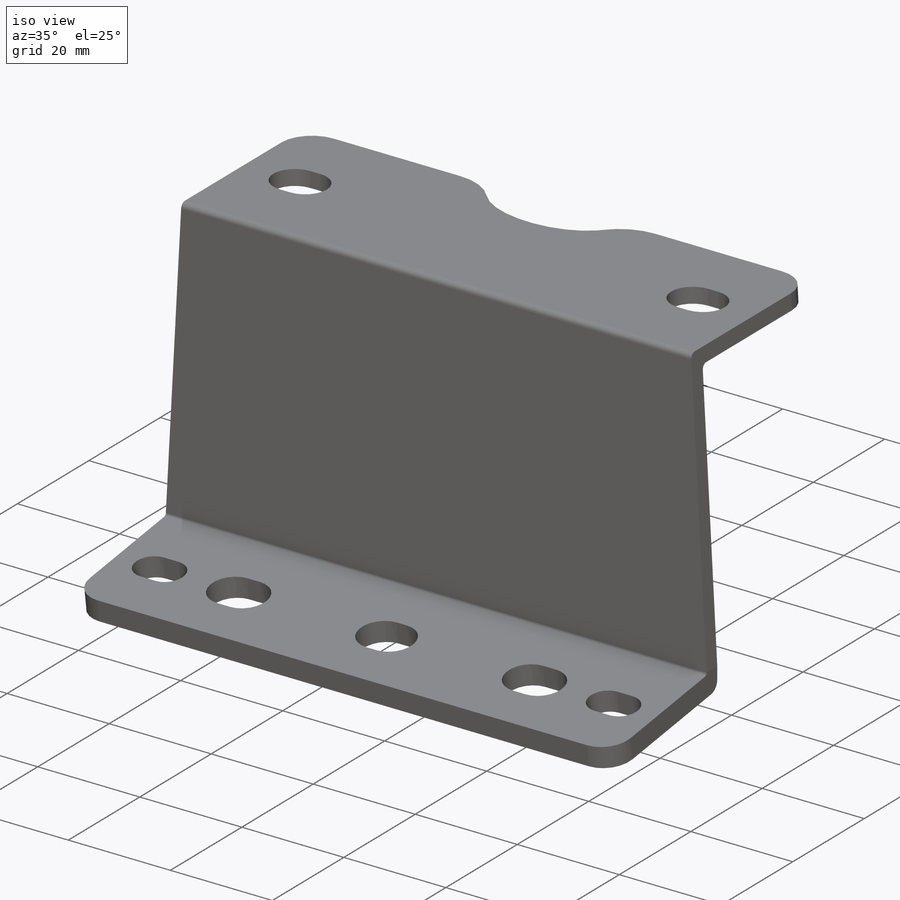
[diagram: iso view]
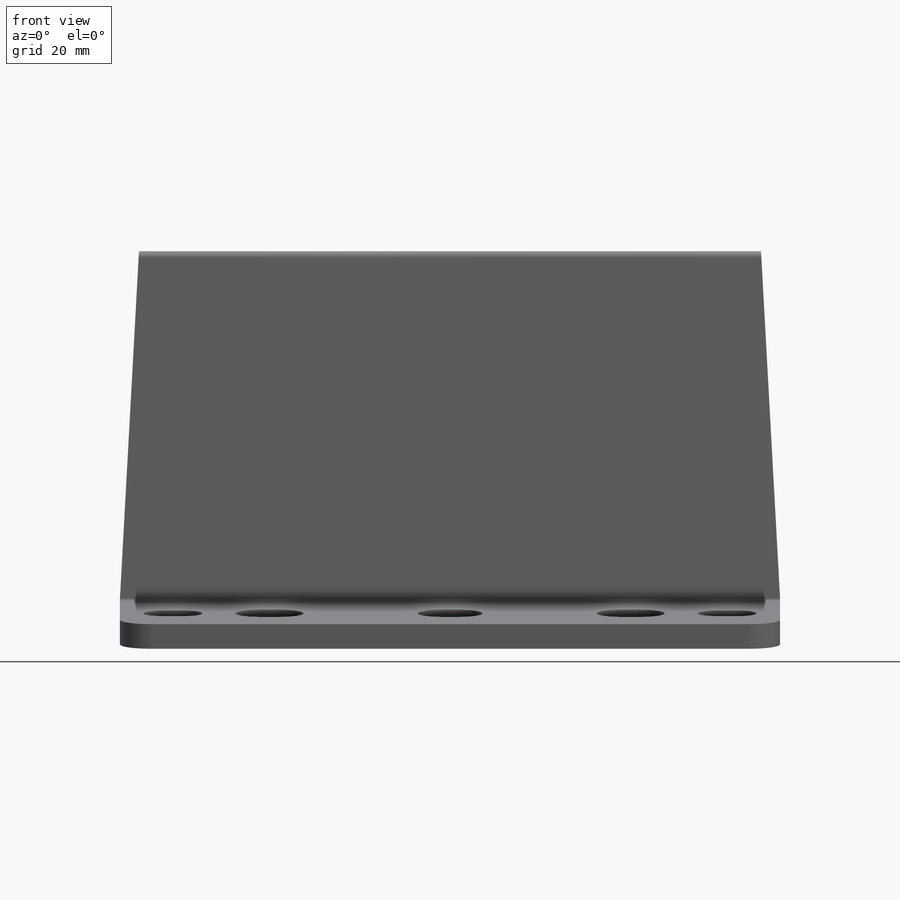
[diagram: front view]
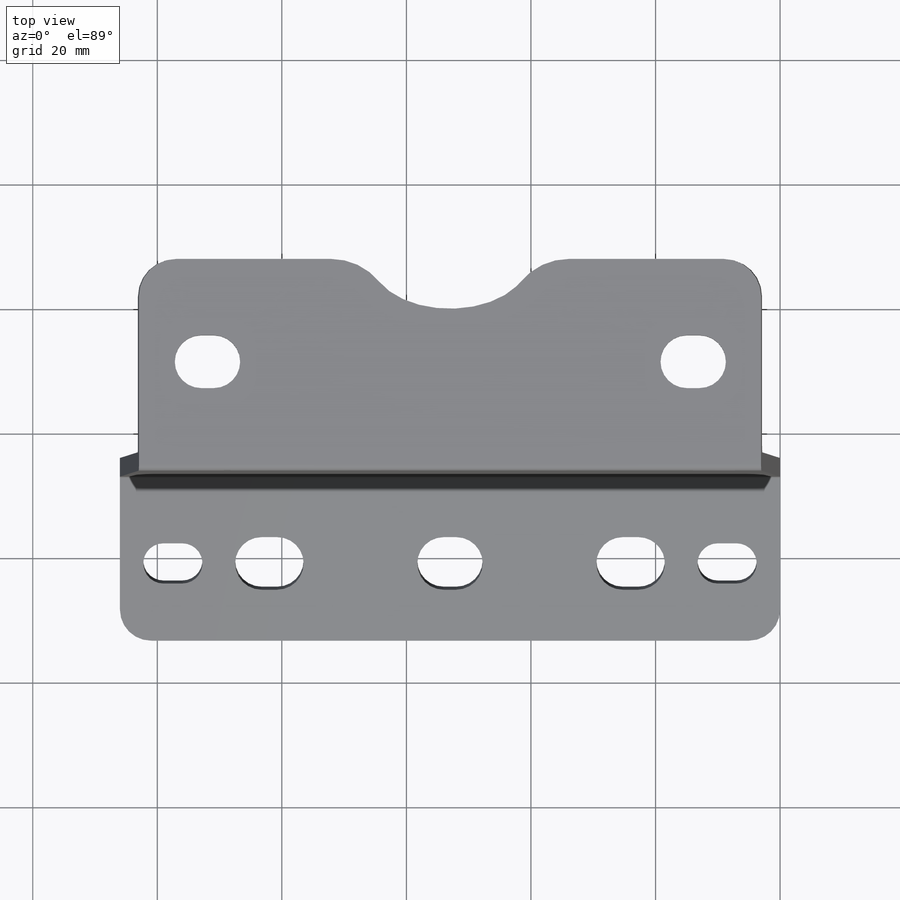
[diagram: top view]
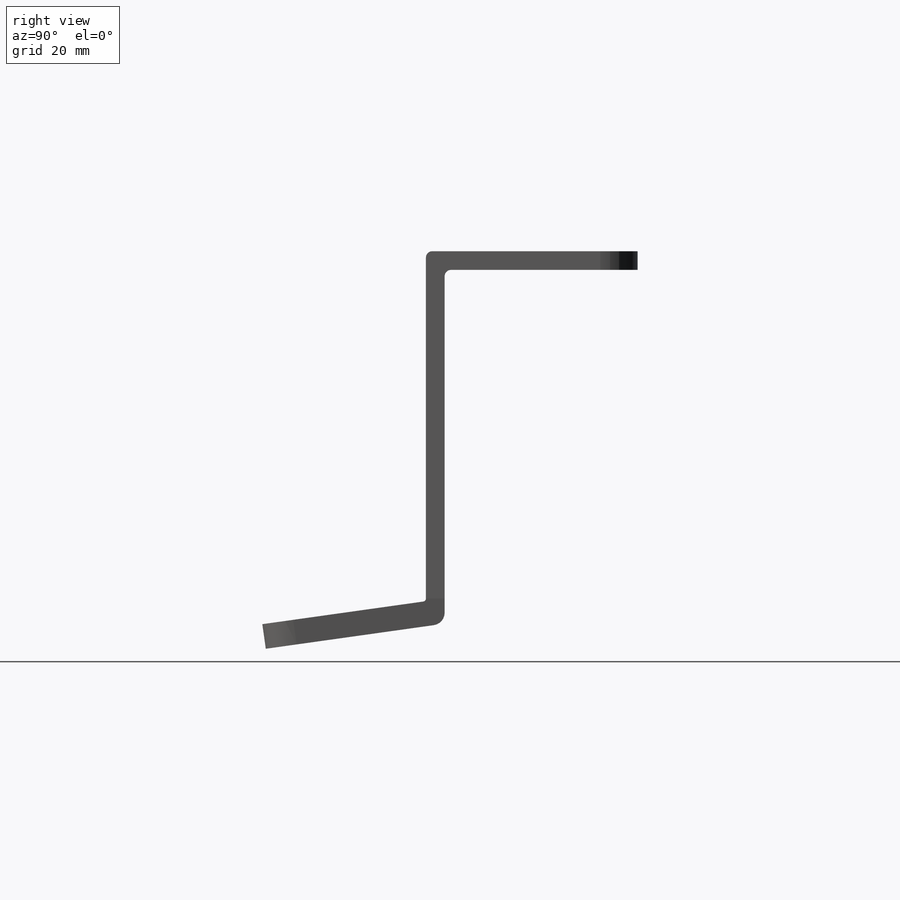
[diagram: right view]
SOLIDWORKS PART (.sldprt)
format: sldprt  version: not decoded by parser v0  size: 330,240 bytes
history: native  units: mm
features: sketch x8, cut_extrude x4, fillet x3, sheet_metal_op x2, material x1 + 1 further entry (+11 scaffold rows collapsed; 1 parser-record rows omitted)
feature tree (31):
  scaffold x11  (default folders/planes/origin — collapsed)
  material  "Material <not specified>"
  sketch  "Right Hand Sketch"  dims[c1.D7=2.0mm c1.D8=0.5mm c1.D1=1.0mm c1.D3=0.5mm c1.D2=1.0mm c2.D1=54.0mm c2.D2=3.0mm c2.D3=54.0mm c2.D4=32.0mm c2.D5=3.0mm c2.D6=35.0mm c3.D2=57.0mm c4.D2=114.5008deg c5.D2=~1710.422667mm c5.D3=3.0mm c5.D1=59.8mm c5.D7=~54.19214mm c6.D2=3.0mm]
  sheet_metal_op  "Sheet-Metal1"
  sheet_metal_op  "Base-Flange1"
  sketch  "Sketch5"  dims[D1=50.0mm D2=50.0mm]
  cut_extrude  "Cut-Extrude1"  [1 undecoded]
  sketch  "Sketch6"  dims[D1=9.0mm]
  fillet  "Fillet1"  Radius=6mm
  sketch  "Sketch8"  dims[D1=8.5mm D2=10.5mm D3=8.5mm D4=10.5mm D5=78.0mm D6=11.0mm D7=~10.780852mm]
  cut_extrude  "Top Holes"  [1 undecoded]
  sketch  "Sketch9"
  cut_extrude  "Indent on Top"  Depth=106mm
  fillet  "Fillet2"  Radius=10mm
  sketch  "Bottom Holes"  dims[D1=8.5mm D2=10.5mm D3=8.5mm D4=11.0mm D5=6.5mm D6=9.5mm D7=89.0mm D8=58.0mm]
  cut_extrude  "Cut-Extrude7"  Depth=106mm
  fillet  "Fillet3"  Radius=5mm
  "Flat-Pattern1"
  sketch  "Bend-Lines1"
  sketch  "Bounding-Box1"
  parser-record x1  (decoder bookkeeping rows leaked as tree rows — omitted from the tree; the rows remain in map.json)
decode coverage: 10 of 17 modeling features carry decoded parameters; 1 rows unclassified (native names shown)
note: ~ marks probable driven/reference dimensions
note: 2 parameter values undecoded
note: suppression state not decoded; provenance and decode notes live in map.json
